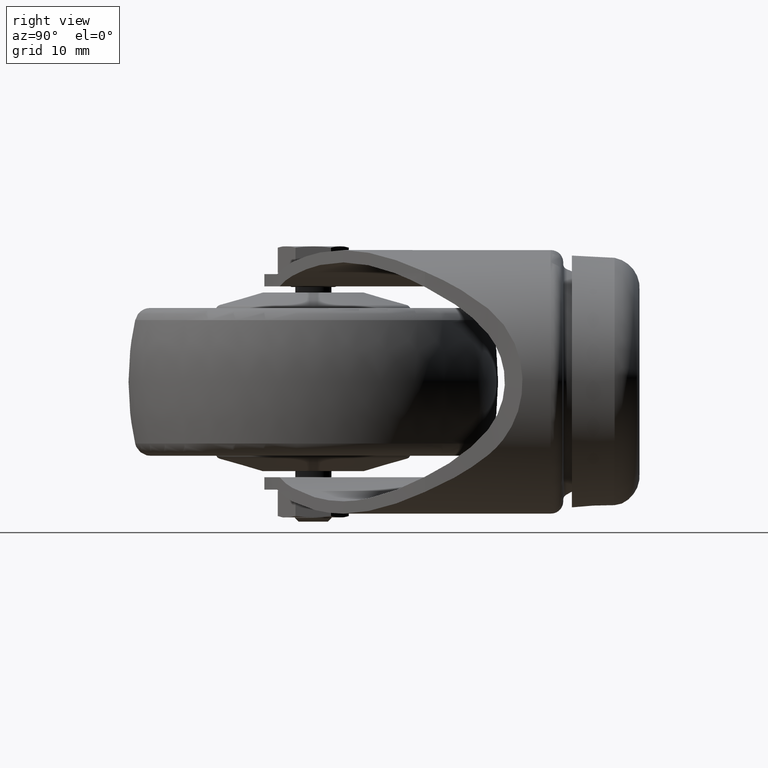
[diagram: clean part render]
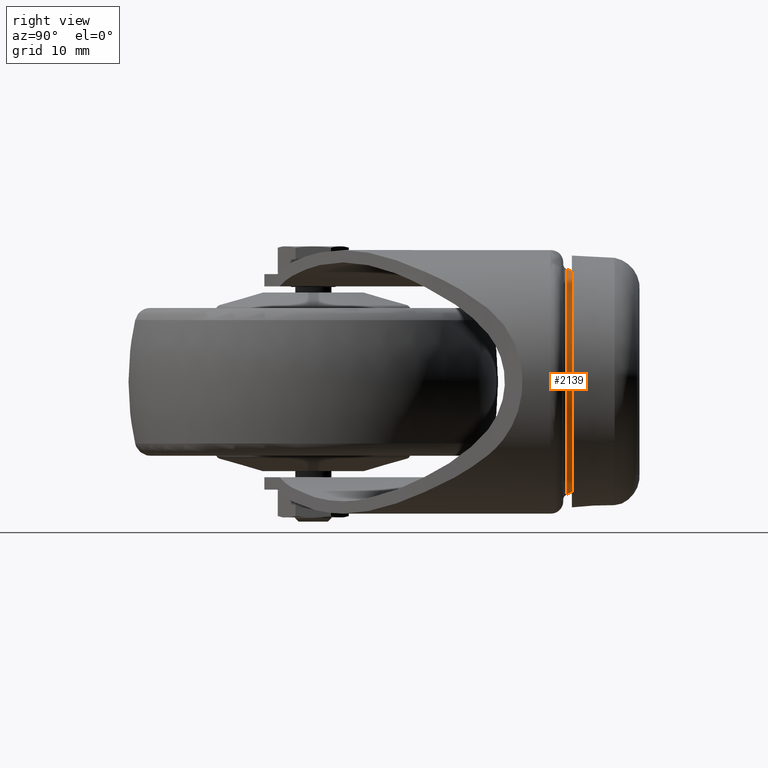
[diagram: same view with one face highlighted and labeled with its STEP entity id]
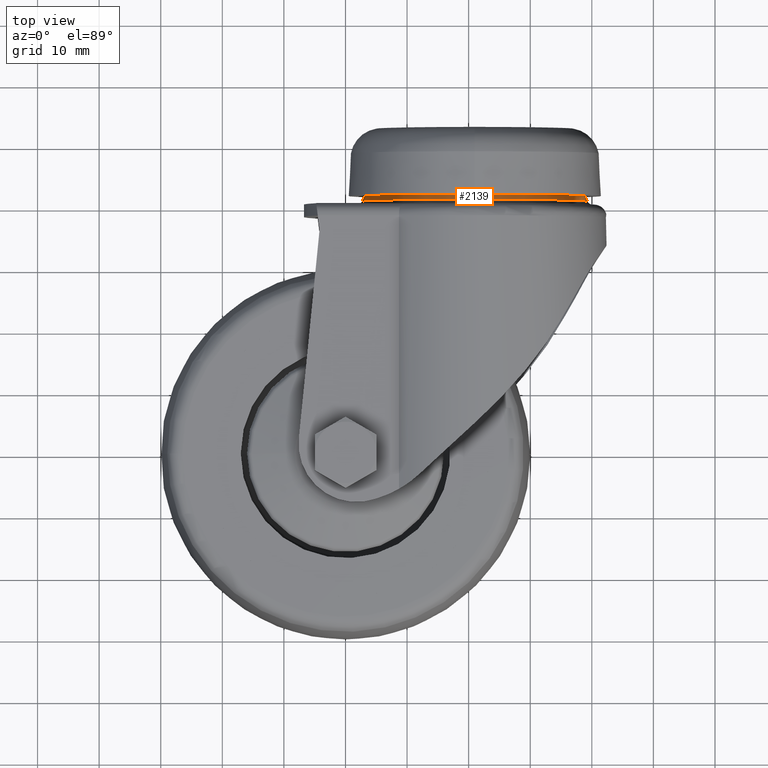
[diagram: same view with one face highlighted and labeled with its STEP entity id]
A machine part, right view. The second image highlights one B-rep face of the part: STEP entity #2139.
A second angle (top view) of the same face is appended — the face is thin or edge-on in the first view.
In plain terms, the highlighted conical surface has half-angle 22.276 deg.
Its self-contained STEP definition (entity closure, byte-faithful):
#348=FACE_OUTER_BOUND('',#510,.T.);
#510=EDGE_LOOP('',(#1705,#1706,#1707,#1708));
#649=LINE('',#4011,#728);
#728=VECTOR('',#3140,18.29);
#833=CIRCLE('',#2610,18.29);
#834=CIRCLE('',#2612,17.95);
#1004=VERTEX_POINT('',#4006);
#1005=VERTEX_POINT('',#4010);
#1247=EDGE_CURVE('',#1004,#1004,#833,.T.);
#1248=EDGE_CURVE('',#1004,#1005,#649,.T.);
#1249=EDGE_CURVE('',#1005,#1005,#834,.T.);
#1705=ORIENTED_EDGE('',*,*,#1247,.F.);
#1706=ORIENTED_EDGE('',*,*,#1248,.T.);
#1707=ORIENTED_EDGE('',*,*,#1249,.T.);
#1708=ORIENTED_EDGE('',*,*,#1248,.F.);
#2003=CONICAL_SURFACE('',#2611,18.29,0.388787761290034);
#2139=ADVANCED_FACE('',(#348),#2003,.T.);
#2610=AXIS2_PLACEMENT_3D('',#4008,#3136,#3137);
#2611=AXIS2_PLACEMENT_3D('',#4009,#3138,#3139);
#2612=AXIS2_PLACEMENT_3D('',#4012,#3141,#3142);
#3136=DIRECTION('center_axis',(0.,-1.,0.));
#3137=DIRECTION('ref_axis',(0.,0.,-1.));
#3138=DIRECTION('center_axis',(0.,-1.,0.));
#3139=DIRECTION('ref_axis',(0.,0.,-1.));
#3140=DIRECTION('',(4.64223096957214E-17,0.925369259270986,-0.379066925484494));
#3141=DIRECTION('center_axis',(0.,-1.,0.));
#3142=DIRECTION('ref_axis',(0.,0.,-1.));
#4006=CARTESIAN_POINT('',(21.,41.1700000000001,18.29));
#4008=CARTESIAN_POINT('Origin',(21.,41.1700000000001,0.));
#4009=CARTESIAN_POINT('Origin',(21.,41.1700000000001,0.));
#4010=CARTESIAN_POINT('',(21.,42.,17.95));
#4011=CARTESIAN_POINT('',(21.,41.1700000000001,18.29));
#4012=CARTESIAN_POINT('Origin',(21.,42.,0.));